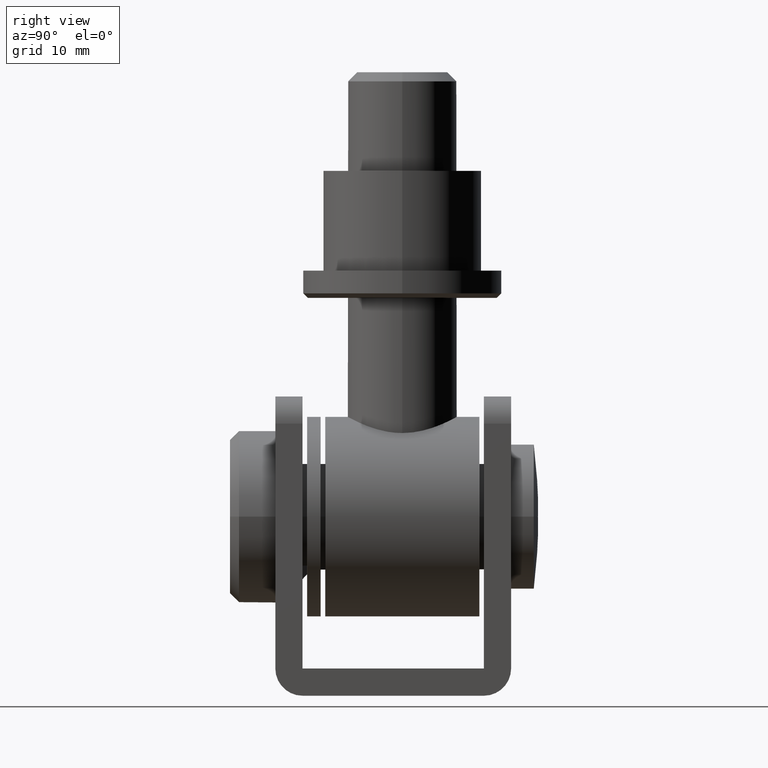
[diagram: clean part render]
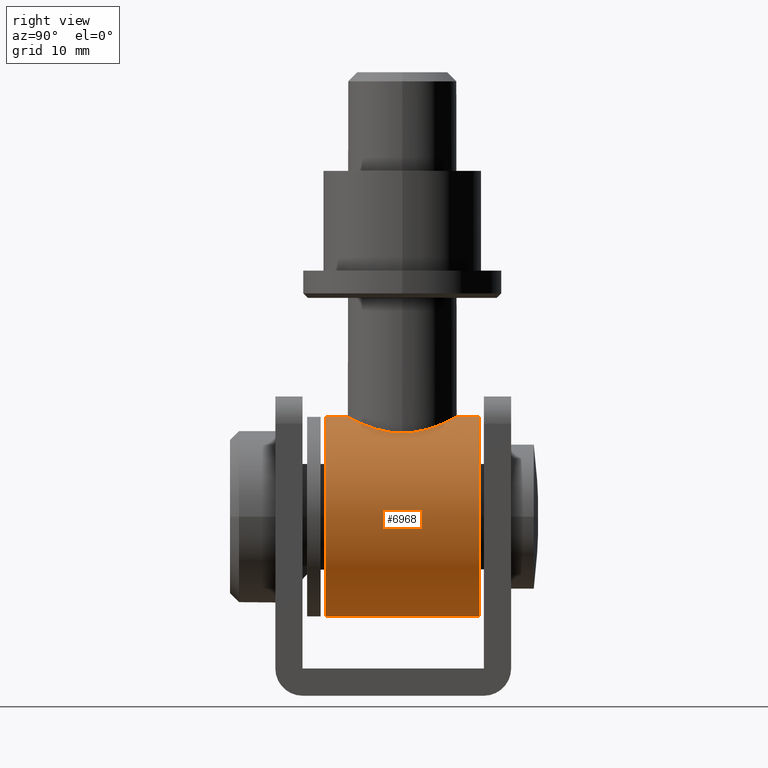
[diagram: same view with one face highlighted and labeled with its STEP entity id]
A machine part, right view. The second image highlights one B-rep face of the part: STEP entity #6968.
In plain terms, the highlighted cylindrical surface (partial cylindrical patch) has radius 11 mm, axis along (-0, -1, -0).
Its self-contained STEP definition (entity closure, byte-faithful):
#292 = VECTOR ( 'NONE', #5458, 1000.000000000000000 ) ;
#312 = EDGE_CURVE ( 'NONE', #2101, #1253, #13552, .T. ) ;
#488 = DIRECTION ( 'NONE',  ( 0.000000000000000000, 1.000000000000000000, 0.000000000000000000 ) ) ;
#678 = CARTESIAN_POINT ( 'NONE',  ( 5.958764655194055848, -0.8082633447127949289, 20.24673442172852944 ) ) ;
#750 = FACE_OUTER_BOUND ( 'NONE', #3313, .T. ) ;
#756 = VERTEX_POINT ( 'NONE', #3815 ) ;
#1019 = CARTESIAN_POINT ( 'NONE',  ( 5.959275232747930140, 0.8027572558152155091, 20.24639007721609119 ) ) ;
#1179 = CARTESIAN_POINT ( 'NONE',  ( -1.292941717051143813E-15, 6.000000000000042633, 22.00000000000002132 ) ) ;
#1253 = VERTEX_POINT ( 'NONE', #12366 ) ;
#1378 = DIRECTION ( 'NONE',  ( -0.000000000000000000, -1.000000000000000000, -0.000000000000000000 ) ) ;
#1430 = EDGE_CURVE ( 'NONE', #756, #5301, #7629, .T. ) ;
#1494 = DIRECTION ( 'NONE',  ( -0.000000000000000000, -1.000000000000000000, -0.000000000000000000 ) ) ;
#1641 = CARTESIAN_POINT ( 'NONE',  ( 6.000000000000000888, 0.000000000000000000, 20.21954445729288352 ) ) ;
#1657 = DIRECTION ( 'NONE',  ( 0.000000000000000000, 0.000000000000000000, 1.000000000000000000 ) ) ;
#1861 = CARTESIAN_POINT ( 'NONE',  ( 5.456468335375139311, -2.502921160301037506, 20.55167608285008285 ) ) ;
#2101 = VERTEX_POINT ( 'NONE', #7552 ) ;
#2157 = ORIENTED_EDGE ( 'NONE', *, *, #1430, .T. ) ;
#2197 = CARTESIAN_POINT ( 'NONE',  ( 5.195181450595737438, 3.026771116979379617, 20.69893628756108583 ) ) ;
#2198 = ORIENTED_EDGE ( 'NONE', *, *, #12369, .T. ) ;
#2405 = CARTESIAN_POINT ( 'NONE',  ( 1.578388718427810922, 5.802334021094416094, 21.89323938765706146 ) ) ;
#2798 = CARTESIAN_POINT ( 'NONE',  ( 1.347111479062088405E-15, 8.500000000000000000, 22.00000000000000000 ) ) ;
#3199 = B_SPLINE_CURVE_WITH_KNOTS ( 'NONE', 3,
 ( #3278, #10417, #1019, #6853, #10214, #9185, #2197, #10358, #11563, #4561, #5729, #3427, #4359, #3579, #10463, #8318, #2405, #9392, #5832, #1179 ),
 .UNSPECIFIED., .F., .F.,
 ( 4, 2, 2, 2, 2, 2, 2, 2, 2, 4 ),
 ( 0.000000000000000000, 0.001197693663140536081, 0.002395387326281072163, 0.003593080989421608244, 0.004790774652562144326, 0.005389621484132410198, 0.005988468315702676938, 0.007186161978843206080, 0.008383855641983736090, 0.009581549305124266100 ),
 .UNSPECIFIED. ) ;
#3278 = CARTESIAN_POINT ( 'NONE',  ( 6.000000000000000888, 0.000000000000000000, 20.21954445729288352 ) ) ;
#3288 = EDGE_CURVE ( 'NONE', #11031, #5301, #3199, .T. ) ;
#3305 = CARTESIAN_POINT ( 'NONE',  ( -1.292941717051143813E-15, 6.000000000000042633, 22.00000000000002132 ) ) ;
#3313 = EDGE_LOOP ( 'NONE', ( #14012, #2157, #8488, #10166, #6959, #2198, #10850 ) ) ;
#3427 = CARTESIAN_POINT ( 'NONE',  ( 3.667957591533195671, 4.752213271341764411, 21.37166460465819995 ) ) ;
#3579 = CARTESIAN_POINT ( 'NONE',  ( 3.027636278272345383, 5.194638388525371298, 21.58054157534279227 ) ) ;
#3641 = VERTEX_POINT ( 'NONE', #5719 ) ;
#3815 = CARTESIAN_POINT ( 'NONE',  ( 1.347111479062088405E-15, 8.500000000000000000, 22.00000000000000000 ) ) ;
#4156 = CARTESIAN_POINT ( 'NONE',  ( 1.962360464104685009, -5.683864869059284786, 21.83000100834586021 ) ) ;
#4359 = CARTESIAN_POINT ( 'NONE',  ( 3.510971889211001340, 4.869372521016767763, 21.42601010734389888 ) ) ;
#4561 = CARTESIAN_POINT ( 'NONE',  ( 4.108820112898906807, 4.376573717929006513, 21.20486149147944843 ) ) ;
#4943 = DIRECTION ( 'NONE',  ( 0.000000000000000000, 0.000000000000000000, 1.000000000000000000 ) ) ;
#5102 = AXIS2_PLACEMENT_3D ( 'NONE', #12909, #9412, #4943 ) ;
#5185 = B_SPLINE_CURVE_WITH_KNOTS ( 'NONE', 3,
 ( #5223, #13421, #8637, #8997, #4156, #13669, #13577, #7663, #10112, #5425, #12336, #6550, #14733, #14778, #1861, #13624, #8946, #678, #13724, #7756 ),
 .UNSPECIFIED., .F., .F.,
 ( 4, 2, 2, 2, 2, 2, 2, 2, 2, 4 ),
 ( 0.02871544817121686466, 0.02990867525022094034, 0.03110190232922501602, 0.03229512940822909517, 0.03348835648723316738, 0.03468158356623725347, 0.03527819710573928957, 0.03587481064524132568, 0.03706803772424540483, 0.03826126480324948398 ),
 .UNSPECIFIED. ) ;
#5223 = CARTESIAN_POINT ( 'NONE',  ( 1.347111063493796830E-15, -6.000000000000000888, 22.00000000000000000 ) ) ;
#5301 = VERTEX_POINT ( 'NONE', #3305 ) ;
#5425 = CARTESIAN_POINT ( 'NONE',  ( 4.520639797281868155, -3.963747484035044621, 21.03245776802575406 ) ) ;
#5458 = DIRECTION ( 'NONE',  ( -0.000000000000000000, -1.000000000000000000, -0.000000000000000000 ) ) ;
#5719 = CARTESIAN_POINT ( 'NONE',  ( 0.000000000000000000, -8.500000000000000000, 0.000000000000000000 ) ) ;
#5729 = CARTESIAN_POINT ( 'NONE',  ( 3.966541277384374009, 4.505995357788191491, 21.26118364807938477 ) ) ;
#5832 = CARTESIAN_POINT ( 'NONE',  ( 0.4021738667356586916, 6.000000000000025757, 22.00000000000002132 ) ) ;
#6337 = CIRCLE ( 'NONE', #14732, 11.00000000000000000 ) ;
#6358 = CARTESIAN_POINT ( 'NONE',  ( 0.000000000000000000, -8.500000000000000000, 11.00000000000000000 ) ) ;
#6550 = CARTESIAN_POINT ( 'NONE',  ( 5.086960923408418545, -3.187496564103950991, 20.75384209739551977 ) ) ;
#6853 = CARTESIAN_POINT ( 'NONE',  ( 5.801705465683259177, 1.580377866482532312, 20.34606358041416740 ) ) ;
#6959 = ORIENTED_EDGE ( 'NONE', *, *, #312, .T. ) ;
#6968 = ADVANCED_FACE ( 'NONE', ( #750 ), #9680, .T. ) ;
#7552 = CARTESIAN_POINT ( 'NONE',  ( 1.347111063493796830E-15, -6.000000000000000888, 22.00000000000000000 ) ) ;
#7629 = LINE ( 'NONE', #2798, #9092 ) ;
#7660 = VECTOR ( 'NONE', #1378, 1000.000000000000000 ) ;
#7663 = CARTESIAN_POINT ( 'NONE',  ( 3.677074291541217566, -4.756968015055498711, 21.37267933406108611 ) ) ;
#7756 = CARTESIAN_POINT ( 'NONE',  ( 6.000000000000000888, 0.000000000000000000, 20.21954445729288352 ) ) ;
#7821 = EDGE_CURVE ( 'NONE', #756, #14796, #11889, .T. ) ;
#8318 = CARTESIAN_POINT ( 'NONE',  ( 1.964715701356762212, 5.682713641755679390, 21.82941792630792932 ) ) ;
#8488 = ORIENTED_EDGE ( 'NONE', *, *, #3288, .F. ) ;
#8637 = CARTESIAN_POINT ( 'NONE',  ( 0.8048950567764878716, -5.959070914707542244, 21.97752526050538080 ) ) ;
#8946 = CARTESIAN_POINT ( 'NONE',  ( 5.798631111107554581, -1.592495867401794163, 20.34798646336550831 ) ) ;
#8997 = CARTESIAN_POINT ( 'NONE',  ( 1.584896872492124853, -5.800558949144580367, 21.89229171483308534 ) ) ;
#9092 = VECTOR ( 'NONE', #9880, 1000.000000000000000 ) ;
#9185 = CARTESIAN_POINT ( 'NONE',  ( 5.379484596268969909, 2.685936244474186996, 20.59645358023474770 ) ) ;
#9392 = CARTESIAN_POINT ( 'NONE',  ( 0.7981875545335717081, 5.959973797475759838, 21.97801766855250705 ) ) ;
#9412 = DIRECTION ( 'NONE',  ( 0.000000000000000000, 1.000000000000000000, 0.000000000000000000 ) ) ;
#9680 = CYLINDRICAL_SURFACE ( 'NONE', #11370, 11.00000000000000000 ) ;
#9696 = CARTESIAN_POINT ( 'NONE',  ( 0.000000000000000000, 8.500000000000000000, 11.00000000000000000 ) ) ;
#9880 = DIRECTION ( 'NONE',  ( -0.000000000000000000, -1.000000000000000000, -0.000000000000000000 ) ) ;
#9894 = CARTESIAN_POINT ( 'NONE',  ( 0.000000000000000000, 8.500000000000000000, 0.000000000000000000 ) ) ;
#10065 = EDGE_CURVE ( 'NONE', #2101, #11031, #5185, .T. ) ;
#10094 = CARTESIAN_POINT ( 'NONE',  ( 0.000000000000000000, 8.500000000000000000, 0.000000000000000000 ) ) ;
#10112 = CARTESIAN_POINT ( 'NONE',  ( 3.978424336799086358, -4.507728706380579986, 21.25955812110607468 ) ) ;
#10166 = ORIENTED_EDGE ( 'NONE', *, *, #10065, .F. ) ;
#10214 = CARTESIAN_POINT ( 'NONE',  ( 5.682763699943903291, 1.964511328925110600, 20.42003039112376683 ) ) ;
#10358 = CARTESIAN_POINT ( 'NONE',  ( 4.760966742196228729, 3.672117832926395931, 20.91929791338504074 ) ) ;
#10417 = CARTESIAN_POINT ( 'NONE',  ( 6.000000000000000888, 0.4058302770235264756, 20.21954445729288707 ) ) ;
#10463 = CARTESIAN_POINT ( 'NONE',  ( 2.686666268328091967, 5.379141798092136106, 21.67324808914444034 ) ) ;
#10825 = DIRECTION ( 'NONE',  ( 0.000000000000000000, 0.000000000000000000, -1.000000000000000000 ) ) ;
#10850 = ORIENTED_EDGE ( 'NONE', *, *, #13196, .F. ) ;
#11031 = VERTEX_POINT ( 'NONE', #1641 ) ;
#11255 = LINE ( 'NONE', #10094, #292 ) ;
#11370 = AXIS2_PLACEMENT_3D ( 'NONE', #9696, #1494, #10825 ) ;
#11563 = CARTESIAN_POINT ( 'NONE',  ( 4.515591347781230169, 3.969462897466271567, 21.03473158094499240 ) ) ;
#11889 = CIRCLE ( 'NONE', #5102, 11.00000000000000000 ) ;
#12336 = CARTESIAN_POINT ( 'NONE',  ( 4.763653758816812633, -3.668354671504028275, 20.91796507631218560 ) ) ;
#12366 = CARTESIAN_POINT ( 'NONE',  ( 1.347111479062088405E-15, -8.500000000000000000, 22.00000000000000000 ) ) ;
#12369 = EDGE_CURVE ( 'NONE', #1253, #3641, #6337, .T. ) ;
#12909 = CARTESIAN_POINT ( 'NONE',  ( 0.000000000000000000, 8.500000000000000000, 11.00000000000000000 ) ) ;
#13196 = EDGE_CURVE ( 'NONE', #14796, #3641, #11255, .T. ) ;
#13421 = CARTESIAN_POINT ( 'NONE',  ( 0.3987974590007876130, -6.000000000000002665, 22.00000000000000355 ) ) ;
#13552 = LINE ( 'NONE', #14206, #7660 ) ;
#13577 = CARTESIAN_POINT ( 'NONE',  ( 3.035831068613001449, -5.189735037997451172, 21.57814169103511048 ) ) ;
#13624 = CARTESIAN_POINT ( 'NONE',  ( 5.681971812653146436, -1.966174061153286301, 20.42048019300410289 ) ) ;
#13669 = CARTESIAN_POINT ( 'NONE',  ( 2.693170791852331991, -5.376244928081399088, 21.67176702883674366 ) ) ;
#13724 = CARTESIAN_POINT ( 'NONE',  ( 6.000000000000002665, -0.4043168056466364124, 20.21954445729288707 ) ) ;
#14012 = ORIENTED_EDGE ( 'NONE', *, *, #7821, .F. ) ;
#14206 = CARTESIAN_POINT ( 'NONE',  ( 1.347111479062088405E-15, 8.500000000000000000, 22.00000000000000000 ) ) ;
#14732 = AXIS2_PLACEMENT_3D ( 'NONE', #6358, #488, #1657 ) ;
#14733 = CARTESIAN_POINT ( 'NONE',  ( 5.188235660065886989, -3.019930997991948196, 20.70016889288670114 ) ) ;
#14778 = CARTESIAN_POINT ( 'NONE',  ( 5.372797328095500369, -2.677838936198705166, 20.59917260424647978 ) ) ;
#14796 = VERTEX_POINT ( 'NONE', #9894 ) ;